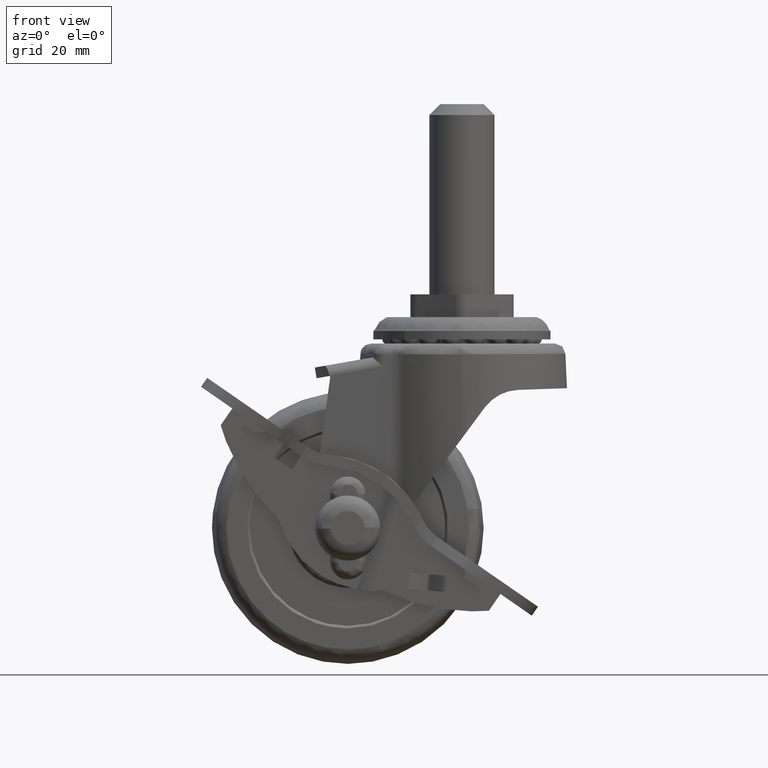
[diagram: clean part render]
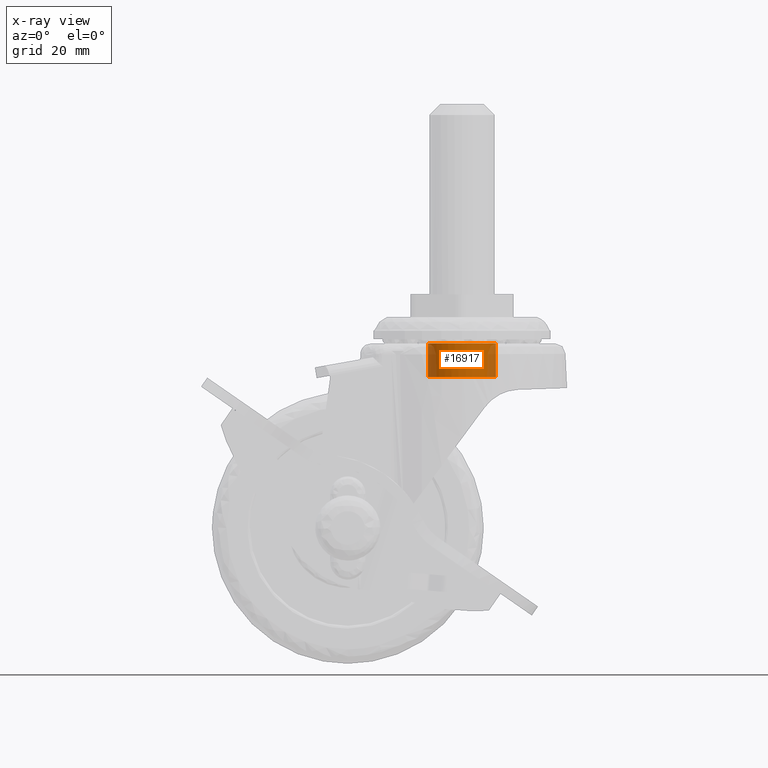
[diagram: x-ray — body ghosted, one internal face saturated and labeled with its STEP entity id]
A machine part, front view, then the same camera in x-ray: the body is ghosted and one INTERNAL B-rep face — a face not visible from any outside direction — is saturated and labeled: STEP entity #16917.
In plain terms, the highlighted face is a freeform B-spline surface patch.
Its self-contained STEP definition (entity closure, byte-faithful):
#16762=CARTESIAN_POINT('',(25.035887739887659,4.772222768377906,34.116087150005306));
#16763=CARTESIAN_POINT('',(25.172466705233067,4.656717395196967,34.116087150005306));
#16764=CARTESIAN_POINT('',(25.302216098085960,4.533589818826797,34.116087150005299));
#16765=CARTESIAN_POINT('',(29.835805916912758,0.231373720740835,34.116087150005306));
#16766=CARTESIAN_POINT('',(25.533589818826801,-4.302216098085961,34.116087150005299));
#16767=CARTESIAN_POINT('',(21.231373720740841,-8.835805916912758,34.116087150005306));
#16768=CARTESIAN_POINT('',(16.697783901914040,-4.533589818826797,34.116087150005299));
#16769=CARTESIAN_POINT('',(12.164194083087242,-0.231373720740835,34.116087150005306));
#16770=CARTESIAN_POINT('',(16.466410181173199,4.302216098085961,34.116087150005299));
#16771=CARTESIAN_POINT('',(25.035887739887659,4.772222768377906,27.556482646028499));
#16772=CARTESIAN_POINT('',(25.172466705233067,4.656717395196967,27.556482646028506));
#16773=CARTESIAN_POINT('',(25.302216098085960,4.533589818826797,27.556482646028499));
#16774=CARTESIAN_POINT('',(29.835805916912758,0.231373720740835,27.556482646028503));
#16775=CARTESIAN_POINT('',(25.533589818826801,-4.302216098085961,27.556482646028499));
#16776=CARTESIAN_POINT('',(21.231373720740841,-8.835805916912758,27.556482646028503));
#16777=CARTESIAN_POINT('',(16.697783901914040,-4.533589818826797,27.556482646028499));
#16778=CARTESIAN_POINT('',(12.164194083087242,-0.231373720740835,27.556482646028503));
#16779=CARTESIAN_POINT('',(16.466410181173199,4.302216098085961,27.556482646028499));
#16787=(BOUNDED_SURFACE()B_SPLINE_SURFACE(2,1,((#16762,#16771),(#16763,#16772),(#16764,#16773),(#16765,#16774),(#16766,#16775),(#16767,#16776),(#16768,#16777),(#16769,#16778),(#16770,#16779)),.UNSPECIFIED.,.F.,.F.,.U.)B_SPLINE_SURFACE_WITH_KNOTS((3,2,2,2,3),(2,2),(0.0,0.414213562373096,10.769552621700480,21.124891681027851,31.480230740355228),(0.0,6.559604503976805),.UNSPECIFIED.)GEOMETRIC_REPRESENTATION_ITEM()RATIONAL_B_SPLINE_SURFACE(((0.977505800795127,0.977505800795127),(0.988284271247462,0.988284271247462),(1.0,1.0),(0.707106781186548,0.707106781186548),(1.0,1.0),(0.707106781186548,0.707106781186548),(1.0,1.0),(0.707106781186548,0.707106781186548),(1.0,1.0)))REPRESENTATION_ITEM('')SURFACE());
#16788=CARTESIAN_POINT('',(25.035887960955119,4.772222909368617,27.716472999952639));
#16789=VERTEX_POINT('',#16788);
#16790=CARTESIAN_POINT('',(27.250000000000000,2.066276E-017,27.716472999897150));
#16791=VERTEX_POINT('',#16790);
#16792=CARTESIAN_POINT('',(25.035887960955119,4.772222909368617,27.716472999952639));
#16793=CARTESIAN_POINT('',(25.403056303005510,4.461825925937454,27.716472999947172));
#16794=CARTESIAN_POINT('',(25.967789235554719,3.859548131562947,27.716472999937938));
#16795=CARTESIAN_POINT('',(26.522385788674050,2.968098659484131,27.716472999926228));
#16796=CARTESIAN_POINT('',(26.892637376598859,2.140834201494251,27.716472999916871));
#16797=CARTESIAN_POINT('',(27.171954946045950,1.187801161305995,27.716472999907008));
#16798=CARTESIAN_POINT('',(27.250059702479419,0.424221483341238,27.716472999900539));
#16799=CARTESIAN_POINT('',(27.250000000000000,2.066276E-017,27.716472999897150));
#16800=B_SPLINE_CURVE_WITH_KNOTS('',3,(#16792,#16793,#16794,#16795,#16796,#16797,#16798,#16799),.UNSPECIFIED.,.F.,.U.,(4,1,1,1,1,4),(0.000000029892903,1.442358242392871,2.460511209594073,3.139244006769613,4.157384159576569,5.430051864260555),.UNSPECIFIED.);
#16801=EDGE_CURVE('',#16789,#16791,#16800,.T.);
#16802=ORIENTED_EDGE('',*,*,#16801,.T.);
#16803=CARTESIAN_POINT('',(21.721651433352552,-6.208197742399980,27.716472999784031));
#16804=VERTEX_POINT('',#16803);
#16805=CARTESIAN_POINT('',(27.250000000000000,2.066276E-017,27.716472999897150));
#16806=CARTESIAN_POINT('',(27.250136513060909,-0.521034897519221,27.716472999906820));
#16807=CARTESIAN_POINT('',(27.142737746524599,-1.373540830540187,27.716472999918050));
#16808=CARTESIAN_POINT('',(26.704373162965432,-2.654864867837400,27.716472999923688));
#16809=CARTESIAN_POINT('',(26.163102994598368,-3.581689506168029,27.716472999918519));
#16810=CARTESIAN_POINT('',(25.440704332078852,-4.430907607314281,27.716472999904390));
#16811=CARTESIAN_POINT('',(24.688659726518591,-5.088182898810975,27.716472999885660));
#16812=CARTESIAN_POINT('',(23.748316014025612,-5.647161541947567,27.716472999857089));
#16813=CARTESIAN_POINT('',(22.749931104128450,-6.029553505024983,27.716472999823079));
#16814=CARTESIAN_POINT('',(22.074516877929511,-6.167212061428034,27.716472999797841));
#16815=CARTESIAN_POINT('',(21.721651433352552,-6.208197742399980,27.716472999784031));
#16816=B_SPLINE_CURVE_WITH_KNOTS('',3,(#16805,#16806,#16807,#16808,#16809,#16810,#16811,#16812,#16813,#16814,#16815),.UNSPECIFIED.,.F.,.U.,(4,1,1,1,1,1,1,1,4),(0.000000087948344,1.563072575572813,2.557765631427744,4.049798913957894,4.760264911379426,5.897052216184612,7.033843506136255,8.028547769276397,9.094261368637348),.UNSPECIFIED.);
#16817=EDGE_CURVE('',#16791,#16804,#16816,.T.);
#16818=ORIENTED_EDGE('',*,*,#16817,.T.);
#16819=CARTESIAN_POINT('',(14.750000000000000,0.0,27.716472999999901));
#16820=VERTEX_POINT('',#16819);
#16821=CARTESIAN_POINT('',(21.721651433352552,-6.208197742399980,27.716472999784031));
#16822=CARTESIAN_POINT('',(21.176325972885010,-6.271775420985894,27.716472999813760));
#16823=CARTESIAN_POINT('',(20.373496656967099,-6.258592926011247,27.716472999855409));
#16824=CARTESIAN_POINT('',(19.081739529118622,-5.987272238489994,27.716472999915919));
#16825=CARTESIAN_POINT('',(17.982170659362520,-5.533300447835210,27.716472999962502));
#16826=CARTESIAN_POINT('',(16.946228743342790,-4.800557224143624,27.716472999998839));
#16827=CARTESIAN_POINT('',(16.250959386630001,-4.093987404774495,27.716473000018549));
#16828=CARTESIAN_POINT('',(15.693336387975860,-3.343552085385027,27.716473000029779));
#16829=CARTESIAN_POINT('',(15.262176309826909,-2.543122093172890,27.716473000032821));
#16830=CARTESIAN_POINT('',(14.862864755825370,-1.399859752888545,27.716473000027751));
#16831=CARTESIAN_POINT('',(14.749840674992960,-0.549015095662879,27.716473000012570));
#16832=CARTESIAN_POINT('',(14.750000000000000,0.0,27.716472999999901));
#16833=B_SPLINE_CURVE_WITH_KNOTS('',3,(#16821,#16822,#16823,#16824,#16825,#16826,#16827,#16828,#16829,#16830,#16831,#16832),.UNSPECIFIED.,.F.,.U.,(4,1,1,1,1,1,1,1,1,4),(0.000000099143335,1.646997164528132,2.388153969105391,3.952811775635855,5.188083298592481,6.176250223027616,6.917407746302470,7.987965029548980,8.893819183256849,10.540817923032400),.UNSPECIFIED.);
#16834=EDGE_CURVE('',#16804,#16820,#16833,.T.);
#16835=ORIENTED_EDGE('',*,*,#16834,.T.);
#16836=CARTESIAN_POINT('',(16.466410416196190,4.302215977357839,27.716473000023878));
#16837=VERTEX_POINT('',#16836);
#16838=CARTESIAN_POINT('',(14.750000000000000,0.0,27.716472999999901));
#16839=CARTESIAN_POINT('',(14.749911064797200,0.469575329343656,27.716473000004122));
#16840=CARTESIAN_POINT('',(14.856328023945640,1.408675424635532,27.716473000011440));
#16841=CARTESIAN_POINT('',(15.384198680452281,2.910373979589859,27.716473000020510));
#16842=CARTESIAN_POINT('',(16.023832294886901,3.836311339550592,27.716473000023399));
#16843=CARTESIAN_POINT('',(16.466410416196190,4.302215977357839,27.716473000023878));
#16844=B_SPLINE_CURVE_WITH_KNOTS('',3,(#16838,#16839,#16840,#16841,#16842,#16843),.UNSPECIFIED.,.F.,.U.,(4,1,1,4),(0.000000024833836,1.408717279191432,2.817416955011858,4.745141703627898),.UNSPECIFIED.);
#16845=EDGE_CURVE('',#16820,#16837,#16844,.T.);
#16846=ORIENTED_EDGE('',*,*,#16845,.T.);
#16847=CARTESIAN_POINT('',(16.466410415572771,4.302215976700941,33.959998999999897));
#16848=VERTEX_POINT('',#16847);
#16849=CARTESIAN_POINT('',(16.466410415572771,4.302215976700941,33.959998999999897));
#16850=CARTESIAN_POINT('',(16.466410416196190,4.302215977357839,27.716473000023878));
#16851=QUASI_UNIFORM_CURVE('',1,(#16849,#16850),.UNSPECIFIED.,.F.,.U.);
#16852=EDGE_CURVE('',#16848,#16837,#16851,.T.);
#16853=ORIENTED_EDGE('',*,*,#16852,.F.);
#16854=CARTESIAN_POINT('',(14.750000000000000,0.0,33.959998999999897));
#16855=VERTEX_POINT('',#16854);
#16856=CARTESIAN_POINT('',(14.750000000000000,0.0,33.959998999999897));
#16857=CARTESIAN_POINT('',(14.749985724487651,0.321282093976249,33.959998999999890));
#16858=CARTESIAN_POINT('',(14.803449910852750,1.013284271924599,33.959998999999961));
#16859=CARTESIAN_POINT('',(15.030501926796481,1.928380382463564,33.959998999999840));
#16860=CARTESIAN_POINT('',(15.512207937472990,3.095550459675900,33.959998999999833));
#16861=CARTESIAN_POINT('',(16.023791353437950,3.836320151299205,33.959998999999890));
#16862=CARTESIAN_POINT('',(16.466410415572771,4.302215976700941,33.959998999999897));
#16863=B_SPLINE_CURVE_WITH_KNOTS('',3,(#16856,#16857,#16858,#16859,#16860,#16861,#16862),.UNSPECIFIED.,.F.,.U.,(4,1,1,1,4),(0.000000024831539,0.963853609702595,2.076005804563147,2.817416954473328,4.745141702722272),.UNSPECIFIED.);
#16864=EDGE_CURVE('',#16855,#16848,#16863,.T.);
#16865=ORIENTED_EDGE('',*,*,#16864,.F.);
#16866=CARTESIAN_POINT('',(20.999998984274420,-6.249999999999917,33.959998999999897));
#16867=VERTEX_POINT('',#16866);
#16868=CARTESIAN_POINT('',(20.999998984274420,-6.249999999999917,33.959998999999897));
#16869=CARTESIAN_POINT('',(20.565373145973719,-6.250068701531867,33.959998999999911));
#16870=CARTESIAN_POINT('',(19.798412096046619,-6.169656676422836,33.959998999999868));
#16871=CARTESIAN_POINT('',(18.642722308100140,-5.826855980960263,33.959998999999918));
#16872=CARTESIAN_POINT('',(17.704253467320711,-5.347215833553919,33.959998999999911));
#16873=CARTESIAN_POINT('',(16.802783723141470,-4.670020617884621,33.959998999999833));
#16874=CARTESIAN_POINT('',(16.076518353377860,-3.907189571840895,33.959999000000060));
#16875=CARTESIAN_POINT('',(15.376761726065400,-2.831745308855190,33.959998999999620));
#16876=CARTESIAN_POINT('',(14.876156866843450,-1.533950670918438,33.959999000000217));
#16877=CARTESIAN_POINT('',(14.749883284378161,-0.511332145842621,33.959998999999591));
#16878=CARTESIAN_POINT('',(14.750000000000000,0.0,33.959998999999897));
#16879=B_SPLINE_CURVE_WITH_KNOTS('',3,(#16868,#16869,#16870,#16871,#16872,#16873,#16874,#16875,#16876,#16877,#16878),.UNSPECIFIED.,.F.,.U.,(4,1,1,1,1,1,1,1,4),(0.000000093308467,1.303872247515693,2.300985130433713,3.604880982507346,4.448601525458205,5.675737201880901,6.749554607587267,8.283553457856488,9.817538070489507),.UNSPECIFIED.);
#16880=EDGE_CURVE('',#16867,#16855,#16879,.T.);
#16881=ORIENTED_EDGE('',*,*,#16880,.F.);
#16882=CARTESIAN_POINT('',(27.250000000000000,0.0,33.959998999999897));
#16883=VERTEX_POINT('',#16882);
#16884=CARTESIAN_POINT('',(27.250000000000000,0.0,33.959998999999897));
#16885=CARTESIAN_POINT('',(27.250165412101850,-0.536910307604572,33.959998999999947));
#16886=CARTESIAN_POINT('',(27.143893777791071,-1.354936535287816,33.959998999999819));
#16887=CARTESIAN_POINT('',(26.759067661102950,-2.496169956969579,33.959999000000010));
#16888=CARTESIAN_POINT('',(26.208835985380610,-3.541228139755417,33.959998999999819));
#16889=CARTESIAN_POINT('',(25.445937146831501,-4.447836977534222,33.959998999999982));
#16890=CARTESIAN_POINT('',(24.450542154141068,-5.254597135301824,33.959998999999748));
#16891=CARTESIAN_POINT('',(23.477611592190570,-5.782309512571380,33.959999000000231));
#16892=CARTESIAN_POINT('',(22.252708825153391,-6.162047506923076,33.959998999999527));
#16893=CARTESIAN_POINT('',(21.460194444830961,-6.250084721557762,33.959998999999911));
#16894=CARTESIAN_POINT('',(20.999998984274420,-6.249999999999917,33.959998999999897));
#16895=B_SPLINE_CURVE_WITH_KNOTS('',3,(#16884,#16885,#16886,#16887,#16888,#16889,#16890,#16891,#16892,#16893,#16894),.UNSPECIFIED.,.F.,.U.,(4,1,1,1,1,1,1,1,4),(0.000000092965076,1.610675789872868,2.454385475408014,3.604881403093017,5.138837841751687,5.982540705481886,7.439854782600163,8.436965488269628,9.817539215456138),.UNSPECIFIED.);
#16896=EDGE_CURVE('',#16883,#16867,#16895,.T.);
#16897=ORIENTED_EDGE('',*,*,#16896,.F.);
#16898=CARTESIAN_POINT('',(25.035887960211550,4.772222909997421,33.959998999999897));
#16899=VERTEX_POINT('',#16898);
#16900=CARTESIAN_POINT('',(25.035887960211550,4.772222909997421,33.959998999999897));
#16901=CARTESIAN_POINT('',(25.532846114647992,4.352433272207878,33.959998999999932));
#16902=CARTESIAN_POINT('',(26.150058436648891,3.637344568211421,33.959998999999883));
#16903=CARTESIAN_POINT('',(26.775498087661859,2.460959542819656,33.959998999999797));
#16904=CARTESIAN_POINT('',(27.148321946786101,1.357467111077159,33.959999000000309));
#16905=CARTESIAN_POINT('',(27.250102903810149,0.480792886875891,33.959998999999293));
#16906=CARTESIAN_POINT('',(27.250000000000000,0.0,33.959998999999897));
#16907=B_SPLINE_CURVE_WITH_KNOTS('',3,(#16900,#16901,#16902,#16903,#16904,#16905,#16906),.UNSPECIFIED.,.F.,.U.,(4,1,1,1,4),(0.000000029890491,1.951433979130165,2.799857188587883,3.987693652484836,5.430051865234411),.UNSPECIFIED.);
#16908=EDGE_CURVE('',#16899,#16883,#16907,.T.);
#16909=ORIENTED_EDGE('',*,*,#16908,.F.);
#16910=CARTESIAN_POINT('',(25.035887960211550,4.772222909997421,33.959998999999897));
#16911=CARTESIAN_POINT('',(25.035887960955119,4.772222909368617,27.716472999952639));
#16912=QUASI_UNIFORM_CURVE('',1,(#16910,#16911),.UNSPECIFIED.,.F.,.U.);
#16913=EDGE_CURVE('',#16899,#16789,#16912,.T.);
#16914=ORIENTED_EDGE('',*,*,#16913,.T.);
#16915=EDGE_LOOP('',(#16802,#16818,#16835,#16846,#16853,#16865,#16881,#16897,#16909,#16914));
#16916=FACE_OUTER_BOUND('',#16915,.T.);
#16917=ADVANCED_FACE('',(#16916),#16787,.F.);